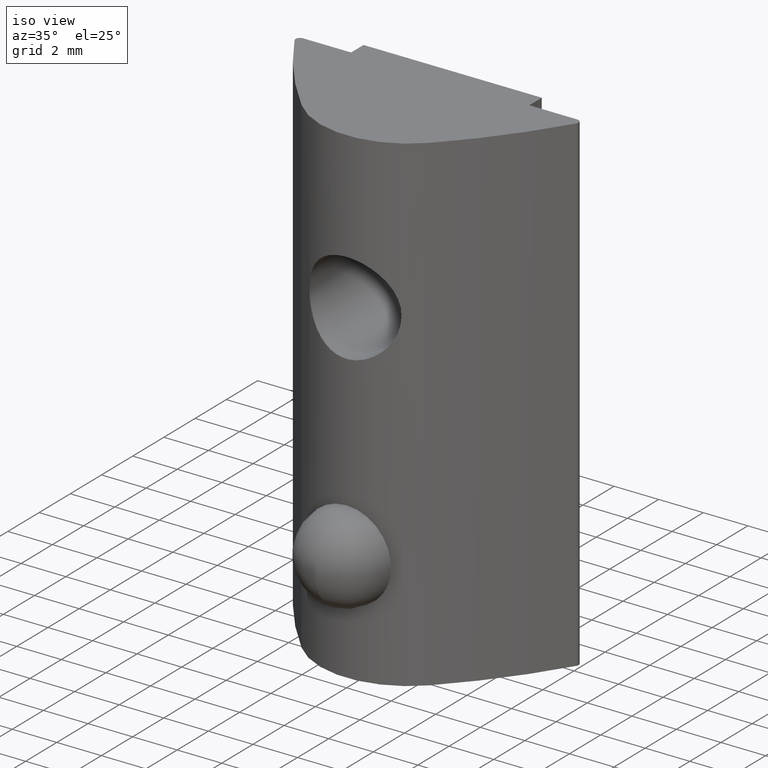
[diagram: clean part render]
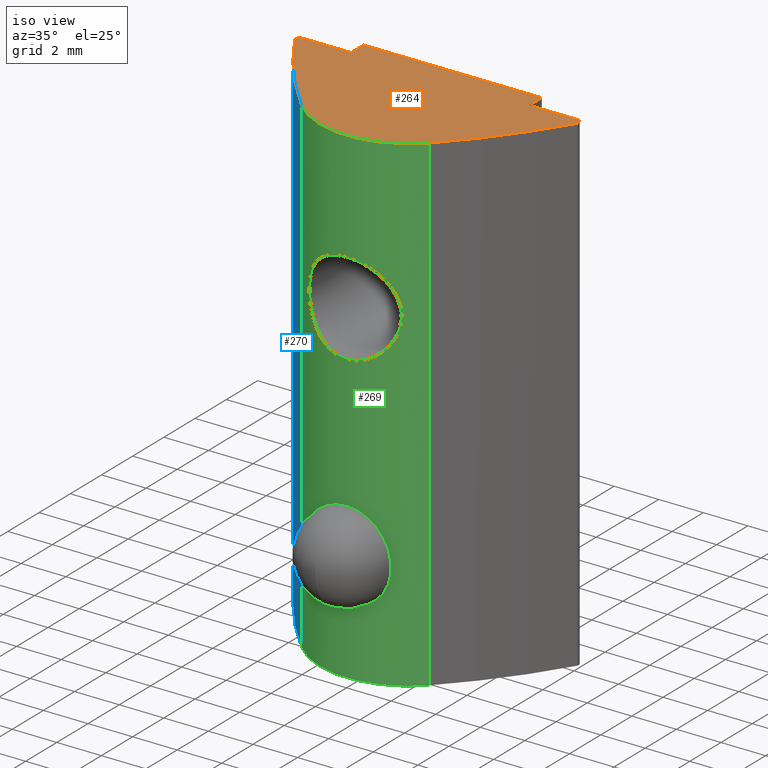
[diagram: same view with three faces highlighted in distinct colors, each labeled with its STEP entity id]
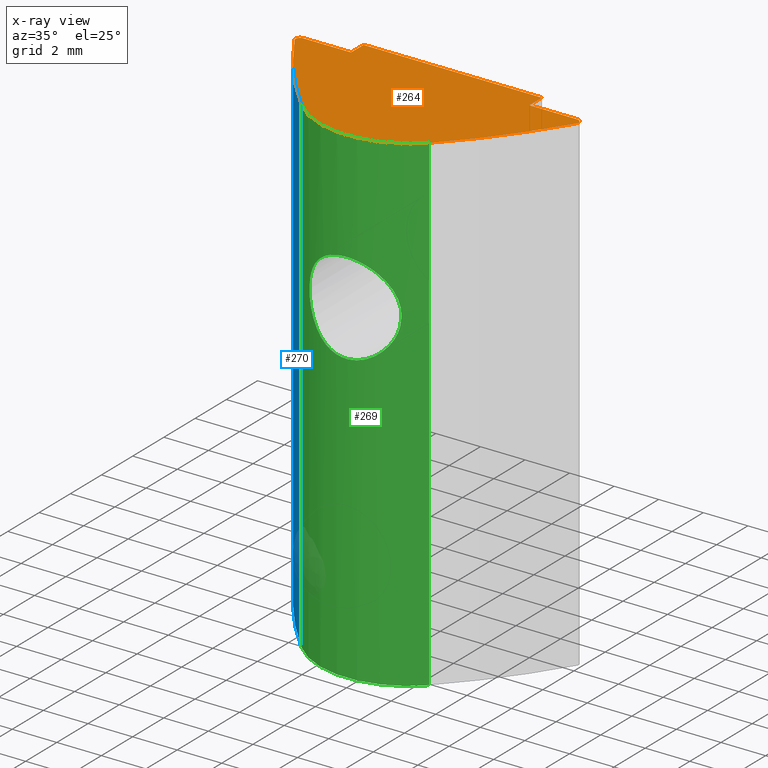
[diagram: x-ray of the same camera — body ghosted, the three highlighted faces saturated]
A machine part, iso view with three faces highlighted in distinct colors.
The next image is the same camera in x-ray (body ghosted, the three faces saturated) — at least one of them is partly hidden behind the body in this view.
Their STEP definitions:

[orange] entity #264 — the highlighted planar face has unit normal (0, 0, 1).
#19=LINE('',#444,#40);
#22=LINE('',#458,#43);
#23=LINE('',#460,#44);
#24=LINE('',#462,#45);
#25=LINE('',#463,#46);
#40=VECTOR('',#332,2.15065889112079);
#43=VECTOR('',#345,2.15065889112079);
#44=VECTOR('',#346,0.800000000000001);
#45=VECTOR('',#347,8.);
#46=VECTOR('',#348,0.800000000000001);
#61=PLANE('',#287);
#74=CIRCLE('',#284,0.2);
#76=CIRCLE('',#288,24.0397940201209);
#77=CIRCLE('',#289,4.);
#78=CIRCLE('',#290,24.0397940201209);
#79=CIRCLE('',#291,0.2);
#90=FACE_OUTER_BOUND('',#107,.T.);
#107=EDGE_LOOP('',(#196,#197,#198,#199,#200,#201,#202,#203,#204,#205));
#125=VERTEX_POINT('',#434);
#126=VERTEX_POINT('',#435);
#129=VERTEX_POINT('',#443);
#131=VERTEX_POINT('',#449);
#132=VERTEX_POINT('',#451);
#133=VERTEX_POINT('',#453);
#134=VERTEX_POINT('',#455);
#135=VERTEX_POINT('',#457);
#136=VERTEX_POINT('',#459);
#137=VERTEX_POINT('',#461);
#150=EDGE_CURVE('',#125,#126,#74,.T.);
#154=EDGE_CURVE('',#129,#126,#19,.T.);
#157=EDGE_CURVE('',#125,#131,#76,.T.);
#158=EDGE_CURVE('',#131,#132,#77,.T.);
#159=EDGE_CURVE('',#133,#132,#78,.T.);
#160=EDGE_CURVE('',#134,#133,#79,.T.);
#161=EDGE_CURVE('',#135,#134,#22,.T.);
#162=EDGE_CURVE('',#136,#135,#23,.T.);
#163=EDGE_CURVE('',#137,#136,#24,.T.);
#164=EDGE_CURVE('',#137,#129,#25,.T.);
#196=ORIENTED_EDGE('',*,*,#150,.F.);
#197=ORIENTED_EDGE('',*,*,#157,.T.);
#198=ORIENTED_EDGE('',*,*,#158,.T.);
#199=ORIENTED_EDGE('',*,*,#159,.F.);
#200=ORIENTED_EDGE('',*,*,#160,.F.);
#201=ORIENTED_EDGE('',*,*,#161,.F.);
#202=ORIENTED_EDGE('',*,*,#162,.F.);
#203=ORIENTED_EDGE('',*,*,#163,.F.);
#204=ORIENTED_EDGE('',*,*,#164,.T.);
#205=ORIENTED_EDGE('',*,*,#154,.T.);
#264=ADVANCED_FACE('',(#90),#61,.T.);
#284=AXIS2_PLACEMENT_3D('',#436,#324,#325);
#287=AXIS2_PLACEMENT_3D('',#448,#335,#336);
#288=AXIS2_PLACEMENT_3D('',#450,#337,#338);
#289=AXIS2_PLACEMENT_3D('',#452,#339,#340);
#290=AXIS2_PLACEMENT_3D('',#454,#341,#342);
#291=AXIS2_PLACEMENT_3D('',#456,#343,#344);
#324=DIRECTION('center_axis',(0.,0.,-1.));
#325=DIRECTION('ref_axis',(-0.869650504899644,0.493667903886605,0.));
#332=DIRECTION('',(-1.,-4.44089209850062E-16,0.));
#335=DIRECTION('center_axis',(0.,0.,1.));
#336=DIRECTION('ref_axis',(1.,0.,0.));
#337=DIRECTION('center_axis',(0.,0.,1.));
#338=DIRECTION('ref_axis',(-0.866025403784438,-0.500000000000001,0.));
#339=DIRECTION('center_axis',(0.,0.,1.));
#340=DIRECTION('ref_axis',(-0.714531911295739,-0.69960285000853,0.));
#341=DIRECTION('center_axis',(0.,0.,-1.));
#342=DIRECTION('ref_axis',(0.866025403784438,-0.500000000000001,0.));
#343=DIRECTION('center_axis',(0.,0.,-1.));
#344=DIRECTION('ref_axis',(0.869650504899644,0.493667903886605,0.));
#345=DIRECTION('',(1.,-4.44089209850062E-16,0.));
#346=DIRECTION('',(-6.93889390390722E-16,-1.,0.));
#347=DIRECTION('',(1.,7.25055979063407E-34,0.));
#348=DIRECTION('',(6.93889390390722E-16,-1.,0.));
#434=CARTESIAN_POINT('',(-6.32238630786788,5.69748319973111,22.));
#435=CARTESIAN_POINT('',(-6.15065889112079,6.,22.));
#436=CARTESIAN_POINT('Origin',(-6.15065889112079,5.8,22.));
#443=CARTESIAN_POINT('',(-4.,6.,22.));
#444=CARTESIAN_POINT('',(-4.,6.,22.));
#448=CARTESIAN_POINT('Origin',(-2.3590021195978,4.15755758650496,22.));
#449=CARTESIAN_POINT('',(-2.85812764518296,1.20158859996588,22.));
#450=CARTESIAN_POINT('Origin',(14.3190723231699,18.0198970100604,22.));
#451=CARTESIAN_POINT('',(2.85812764518296,1.20158859996588,22.));
#452=CARTESIAN_POINT('Origin',(0.,4.,22.));
#453=CARTESIAN_POINT('',(6.32238630786788,5.69748319973111,22.));
#454=CARTESIAN_POINT('Origin',(-14.3190723231699,18.0198970100604,22.));
#455=CARTESIAN_POINT('',(6.15065889112079,6.,22.));
#456=CARTESIAN_POINT('Origin',(6.15065889112079,5.8,22.));
#457=CARTESIAN_POINT('',(4.,6.,22.));
#458=CARTESIAN_POINT('',(4.,6.,22.));
#459=CARTESIAN_POINT('',(4.,6.8,22.));
#460=CARTESIAN_POINT('',(4.,6.8,22.));
#461=CARTESIAN_POINT('',(-4.,6.8,22.));
#462=CARTESIAN_POINT('',(-2.46519032881558E-33,6.8,22.));
#463=CARTESIAN_POINT('',(-4.,6.8,22.));

[blue] entity #270 — the highlighted cylindrical surface (partial cylindrical patch) has radius 24.0398 mm, axis along (0, 0, 1).
#18=LINE('',#441,#39);
#33=LINE('',#485,#54);
#39=VECTOR('',#329,22.);
#54=VECTOR('',#372,22.);
#76=CIRCLE('',#288,24.0397940201209);
#83=CIRCLE('',#301,24.0397940201209);
#96=FACE_OUTER_BOUND('',#115,.T.);
#115=EDGE_LOOP('',(#229,#230,#231,#232));
#125=VERTEX_POINT('',#434);
#128=VERTEX_POINT('',#439);
#131=VERTEX_POINT('',#449);
#143=VERTEX_POINT('',#483);
#153=EDGE_CURVE('',#128,#125,#18,.T.);
#157=EDGE_CURVE('',#125,#131,#76,.T.);
#175=EDGE_CURVE('',#143,#131,#33,.T.);
#176=EDGE_CURVE('',#128,#143,#83,.T.);
#229=ORIENTED_EDGE('',*,*,#153,.F.);
#230=ORIENTED_EDGE('',*,*,#176,.T.);
#231=ORIENTED_EDGE('',*,*,#175,.T.);
#232=ORIENTED_EDGE('',*,*,#157,.F.);
#257=CYLINDRICAL_SURFACE('',#300,24.0397940201209);
#270=ADVANCED_FACE('',(#96),#257,.T.);
#288=AXIS2_PLACEMENT_3D('',#450,#337,#338);
#300=AXIS2_PLACEMENT_3D('',#486,#373,#374);
#301=AXIS2_PLACEMENT_3D('',#487,#375,#376);
#329=DIRECTION('',(0.,0.,1.));
#337=DIRECTION('center_axis',(0.,0.,1.));
#338=DIRECTION('ref_axis',(-0.866025403784438,-0.500000000000001,0.));
#372=DIRECTION('',(0.,0.,1.));
#373=DIRECTION('center_axis',(0.,0.,1.));
#374=DIRECTION('ref_axis',(-0.866025403784438,-0.500000000000001,0.));
#375=DIRECTION('center_axis',(0.,0.,1.));
#376=DIRECTION('ref_axis',(-0.866025403784438,-0.500000000000001,0.));
#434=CARTESIAN_POINT('',(-6.32238630786788,5.69748319973111,22.));
#439=CARTESIAN_POINT('',(-6.32238630786788,5.69748319973111,0.));
#441=CARTESIAN_POINT('',(-6.32238630786788,5.69748319973111,0.));
#449=CARTESIAN_POINT('',(-2.85812764518296,1.20158859996588,22.));
#450=CARTESIAN_POINT('Origin',(14.3190723231699,18.0198970100604,22.));
#483=CARTESIAN_POINT('',(-2.85812764518296,1.20158859996588,0.));
#485=CARTESIAN_POINT('',(-2.85812764518296,1.20158859996588,0.));
#486=CARTESIAN_POINT('Origin',(14.3190723231699,18.0198970100604,0.));
#487=CARTESIAN_POINT('Origin',(14.3190723231699,18.0198970100604,0.));

[green] entity #269 — the highlighted cylindrical surface (partial cylindrical patch) has radius 4 mm, axis along (0, 0, 1).
#16=LINE('',#428,#37);
#30=LINE('',#476,#51);
#33=LINE('',#485,#54);
#37=VECTOR('',#313,4.);
#51=VECTOR('',#361,22.);
#54=VECTOR('',#372,22.);
#68=FACE_BOUND('',#113,.T.);
#69=FACE_BOUND('',#114,.T.);
#77=CIRCLE('',#289,4.);
#82=CIRCLE('',#299,4.);
#95=FACE_OUTER_BOUND('',#112,.T.);
#112=EDGE_LOOP('',(#222,#223,#224,#225));
#113=EDGE_LOOP('',(#226));
#114=EDGE_LOOP('',(#227,#228));
#120=B_SPLINE_CURVE_WITH_KNOTS('',3,(#389,#390,#391,#392,#393,#394,#395,
#396,#397,#398,#399,#400,#401,#402,#403,#404,#405,#406,#407,#408,#409,#410,
#411,#412,#413,#414,#415,#416,#417,#418,#419,#420,#421,#422),
 .UNSPECIFIED.,.T.,.F.,(4,2,2,2,2,2,2,2,2,2,2,2,2,2,2,2,4),(0.,0.0797064293911206,
0.159412858782241,0.238866490505307,0.318320122228373,0.397773753951439,
0.477227385674505,0.556933815065625,0.636640244456746,0.716346673847867,
0.796053103238987,0.875506734962053,0.954960366685119,1.03441399840818,
1.11386763013125,1.19357405952237,1.27328048891349),.UNSPECIFIED.);
#121=VERTEX_POINT('',#388);
#123=VERTEX_POINT('',#426);
#124=VERTEX_POINT('',#427);
#131=VERTEX_POINT('',#449);
#132=VERTEX_POINT('',#451);
#141=VERTEX_POINT('',#475);
#143=VERTEX_POINT('',#483);
#145=EDGE_CURVE('',#121,#121,#120,.T.);
#147=EDGE_CURVE('',#123,#124,#16,.T.);
#158=EDGE_CURVE('',#131,#132,#77,.T.);
#170=EDGE_CURVE('',#141,#132,#30,.T.);
#174=EDGE_CURVE('',#143,#141,#82,.T.);
#175=EDGE_CURVE('',#143,#131,#33,.T.);
#222=ORIENTED_EDGE('',*,*,#174,.T.);
#223=ORIENTED_EDGE('',*,*,#170,.T.);
#224=ORIENTED_EDGE('',*,*,#158,.F.);
#225=ORIENTED_EDGE('',*,*,#175,.F.);
#226=ORIENTED_EDGE('',*,*,#145,.T.);
#227=ORIENTED_EDGE('',*,*,#147,.T.);
#228=ORIENTED_EDGE('',*,*,#147,.F.);
#256=CYLINDRICAL_SURFACE('',#298,4.);
#269=ADVANCED_FACE('',(#95,#68,#69),#256,.T.);
#289=AXIS2_PLACEMENT_3D('',#452,#339,#340);
#298=AXIS2_PLACEMENT_3D('',#482,#368,#369);
#299=AXIS2_PLACEMENT_3D('',#484,#370,#371);
#313=DIRECTION('',(0.,0.,1.));
#339=DIRECTION('center_axis',(0.,0.,1.));
#340=DIRECTION('ref_axis',(-0.714531911295739,-0.69960285000853,0.));
#361=DIRECTION('',(0.,0.,1.));
#368=DIRECTION('center_axis',(0.,0.,1.));
#369=DIRECTION('ref_axis',(-0.714531911295739,-0.69960285000853,0.));
#370=DIRECTION('center_axis',(0.,0.,1.));
#371=DIRECTION('ref_axis',(-0.714531911295739,-0.69960285000853,0.));
#372=DIRECTION('',(0.,0.,1.));
#388=CARTESIAN_POINT('',(-2.067,0.57545462871347,15.));
#389=CARTESIAN_POINT('Ctrl Pts',(-2.067,0.57545462871347,15.));
#390=CARTESIAN_POINT('Ctrl Pts',(-2.067,0.57545462871347,15.2656880979704));
#391=CARTESIAN_POINT('Ctrl Pts',(-2.01285292870242,0.541243036128579,15.5444925823021));
#392=CARTESIAN_POINT('Ctrl Pts',(-1.80059007720931,0.426143478067878,16.0516303580367));
#393=CARTESIAN_POINT('Ctrl Pts',(-1.6426154579373,0.347653589298708,16.2805639754879));
#394=CARTESIAN_POINT('Ctrl Pts',(-1.28113811844711,0.205758910039444,16.6420413149781));
#395=CARTESIAN_POINT('Ctrl Pts',(-1.05201595879367,0.132126138343621,16.8004341776699));
#396=CARTESIAN_POINT('Ctrl Pts',(-0.544033155353859,0.0287012506451315,
17.0130397274761));
#397=CARTESIAN_POINT('Ctrl Pts',(-0.264845439076887,2.51405685171475E-17,
17.067));
#398=CARTESIAN_POINT('Ctrl Pts',(0.264845439076886,-2.51405685171474E-17,
17.067));
#399=CARTESIAN_POINT('Ctrl Pts',(0.544033155353857,0.0287012506451316,17.0130397274761));
#400=CARTESIAN_POINT('Ctrl Pts',(1.05201595879367,0.132126138343621,16.8004341776699));
#401=CARTESIAN_POINT('Ctrl Pts',(1.28113811844711,0.205758910039443,16.6420413149781));
#402=CARTESIAN_POINT('Ctrl Pts',(1.6426154579373,0.347653589298708,16.2805639754879));
#403=CARTESIAN_POINT('Ctrl Pts',(1.80059007720931,0.426143478067878,16.0516303580367));
#404=CARTESIAN_POINT('Ctrl Pts',(2.01285292870242,0.541243036128579,15.5444925823021));
#405=CARTESIAN_POINT('Ctrl Pts',(2.067,0.57545462871347,15.2656880979704));
#406=CARTESIAN_POINT('Ctrl Pts',(2.067,0.57545462871347,14.7343119020296));
#407=CARTESIAN_POINT('Ctrl Pts',(2.01285292870242,0.541243036128579,14.4555074176979));
#408=CARTESIAN_POINT('Ctrl Pts',(1.80059007720931,0.426143478067879,13.9483696419634));
#409=CARTESIAN_POINT('Ctrl Pts',(1.6426154579373,0.347653589298708,13.7194360245121));
#410=CARTESIAN_POINT('Ctrl Pts',(1.28113811844711,0.205758910039444,13.3579586850219));
#411=CARTESIAN_POINT('Ctrl Pts',(1.05201595879367,0.132126138343622,13.1995658223301));
#412=CARTESIAN_POINT('Ctrl Pts',(0.544033155353859,0.0287012506451318,12.9869602725239));
#413=CARTESIAN_POINT('Ctrl Pts',(0.264845439076887,4.19009475285791E-17,
12.933));
#414=CARTESIAN_POINT('Ctrl Pts',(-0.264845439076886,-4.19009475285791E-17,
12.933));
#415=CARTESIAN_POINT('Ctrl Pts',(-0.544033155353857,0.0287012506451314,
12.9869602725239));
#416=CARTESIAN_POINT('Ctrl Pts',(-1.05201595879367,0.132126138343621,13.1995658223301));
#417=CARTESIAN_POINT('Ctrl Pts',(-1.28113811844711,0.205758910039443,13.3579586850219));
#418=CARTESIAN_POINT('Ctrl Pts',(-1.6426154579373,0.347653589298708,13.7194360245121));
#419=CARTESIAN_POINT('Ctrl Pts',(-1.80059007720931,0.426143478067878,13.9483696419634));
#420=CARTESIAN_POINT('Ctrl Pts',(-2.01285292870242,0.541243036128579,14.4555074176979));
#421=CARTESIAN_POINT('Ctrl Pts',(-2.067,0.57545462871347,14.7343119020296));
#422=CARTESIAN_POINT('Ctrl Pts',(-2.067,0.57545462871347,15.));
#426=CARTESIAN_POINT('',(1.77635683940025E-15,6.66133814775091E-16,3.));
#427=CARTESIAN_POINT('',(1.77635683940025E-15,6.66133814775091E-16,7.));
#428=CARTESIAN_POINT('',(1.48029736616688E-15,5.55111512312578E-16,0.));
#449=CARTESIAN_POINT('',(-2.85812764518296,1.20158859996588,22.));
#451=CARTESIAN_POINT('',(2.85812764518296,1.20158859996588,22.));
#452=CARTESIAN_POINT('Origin',(0.,4.,22.));
#475=CARTESIAN_POINT('',(2.85812764518296,1.20158859996588,0.));
#476=CARTESIAN_POINT('',(2.85812764518296,1.20158859996588,0.));
#482=CARTESIAN_POINT('Origin',(0.,4.,0.));
#483=CARTESIAN_POINT('',(-2.85812764518296,1.20158859996588,0.));
#484=CARTESIAN_POINT('Origin',(0.,4.,0.));
#485=CARTESIAN_POINT('',(-2.85812764518296,1.20158859996588,0.));